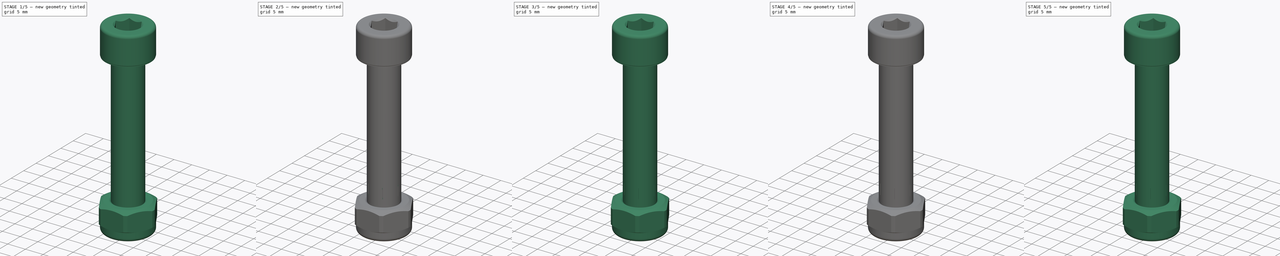
[diagram: build sequence overview — one tinted view per stage of 5, left to right]
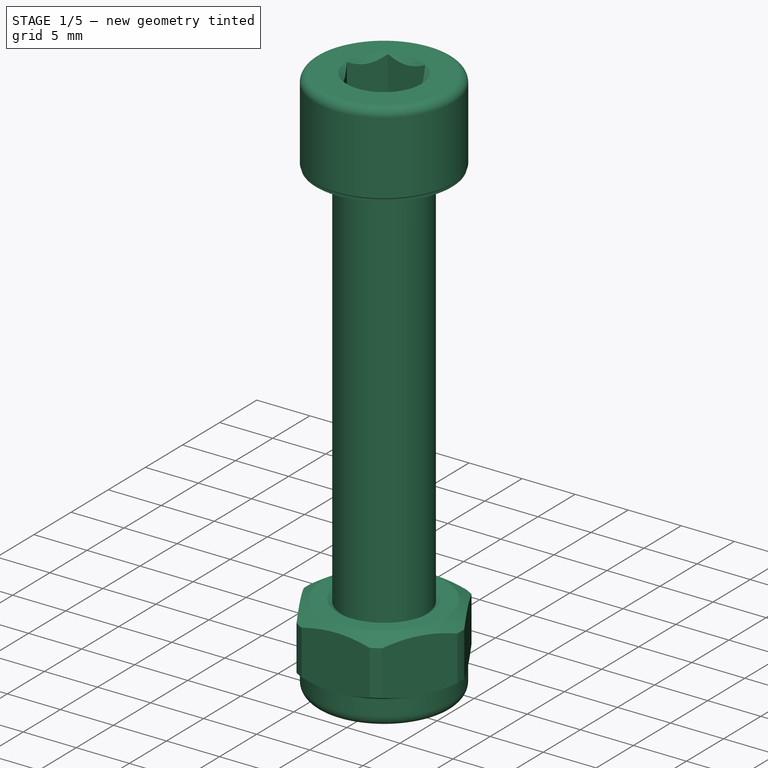
[diagram: stage 1 of 5 — iso view after this stage's code; geometry added in this stage tinted green]
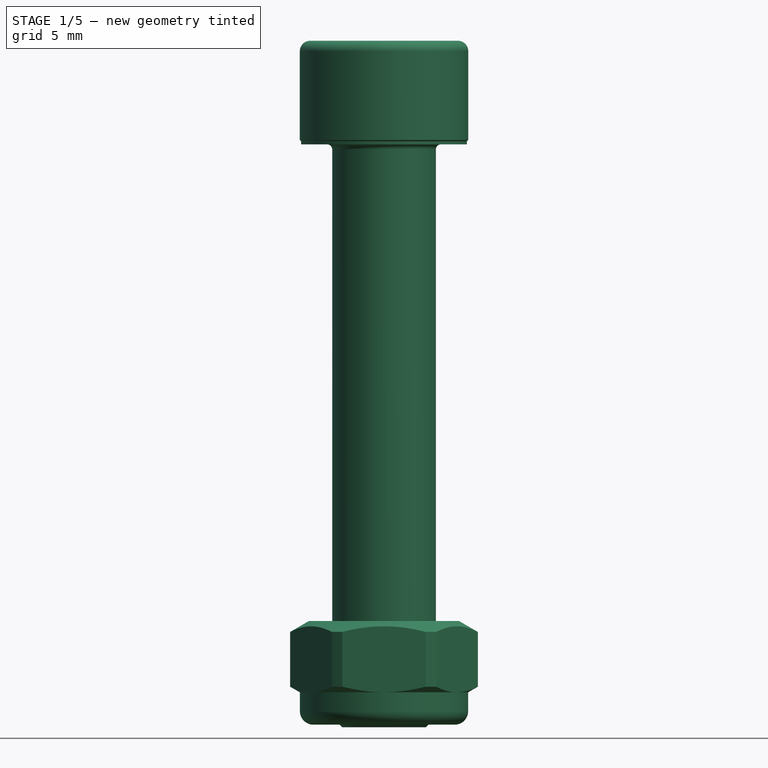
[diagram: stage 1 of 5 — front view after this stage's code; geometry added in this stage tinted green]
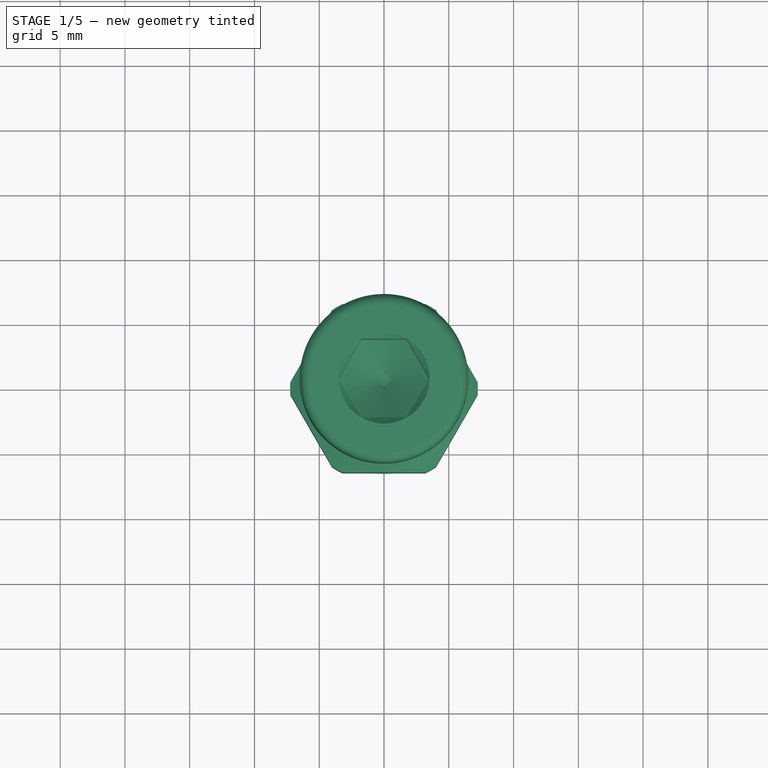
[diagram: stage 1 of 5 — top view after this stage's code; geometry added in this stage tinted green]
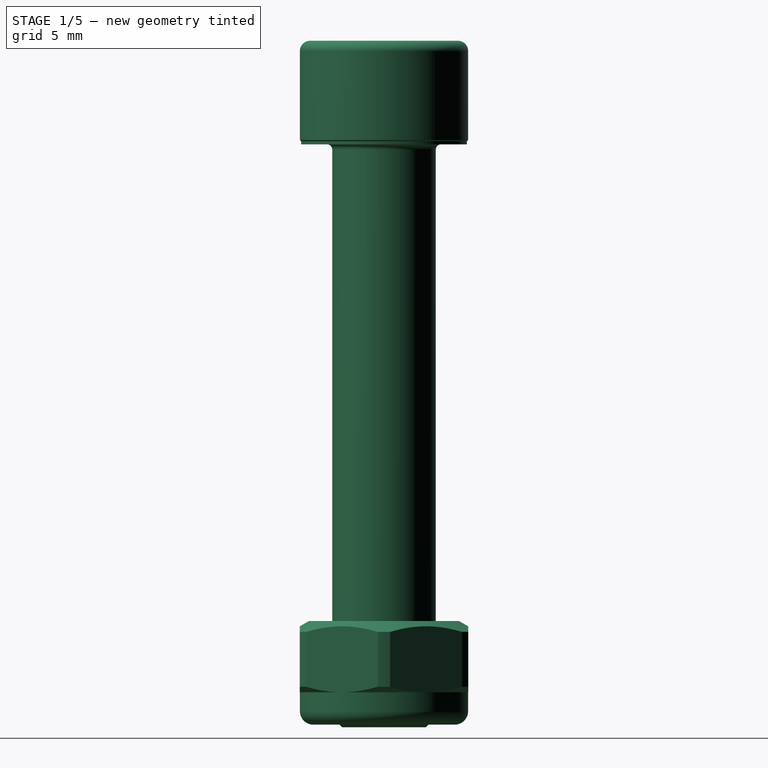
[diagram: stage 1 of 5 — right view after this stage's code; geometry added in this stage tinted green]
FCSTD DOCUMENT  (FreeCAD 0.18R16110 (Git))
Label: tribo_idler_ass_exploded
License: All rights reserved
LicenseURL: http://en.wikipedia.org/wiki/All_rights_reserved
objects: Part::Feature×15, Part::FeaturePython×14, App::Part×10, App::DocumentObjectGroup×2, Sketcher::SketchObject×2, PartDesign::Pad×2, PartDesign::Body×2
note: 37 computed .brp shape members not serialized (recipe doc carries the construction recipe); baked Part::Feature solids carry a one-line shape summary decoded from their .brp

FEATURE [App::Part] Part008  label="M4x35screwnut-004"
  Group = -> [Screw007,Nut004]
  Origin = -> Origin008
  Placement = pos=(74,6,26) rot=(0,0,1;0rad)
FEATURE [App::DocumentObjectGroup] Group001  label="M4x35screwnut"
  Group = -> [Part008,Part007,Part006,Part005]
FEATURE [Part::Feature] Body006  label="M8washer003"
  Placement = pos=(0,0,-35.2) rot=(0,0,1;0rad)
  shape: bbox 16 x 16 x 1.6 mm, 4 faces (baked)
FEATURE [Part::Feature] Body007  label="M8washer004"
  Placement = pos=(0,0,-36.8) rot=(0,0,1;0rad)
  shape: bbox 16 x 16 x 1.6 mm, 4 faces (baked)
FEATURE [Part::Feature] Compound002  label="zz688-02"
  Placement = pos=(0,0,-20.1) rot=(0,0,1;0rad)
  shape: bbox 17.32 x 17.32 x 5 mm, 102 faces, 11 solids (baked)
FEATURE [Part::Feature] Body005  label="M8washer002"
  Placement = pos=(0,0,-27.6) rot=(0,0,1;0rad)
  shape: bbox 16 x 16 x 1.6 mm, 4 faces (baked)
FEATURE [Sketcher::SketchObject] Sketch
  MapMode = 5
  Support = -> [XY_Plane011]
  sketch-geometry (2):
    g0: Circle CenterX=0 CenterY=0 CenterZ=0 NormalX=0 NormalY=0 NormalZ=1 AngleXU=0 Radius=6.4
    g1: Circle CenterX=0 CenterY=0 CenterZ=0 NormalX=0 NormalY=0 NormalZ=1 AngleXU=0 Radius=4.2
  constraints (4):
    c: Radius(g0) = 6.4
    c: Radius(g1) = 4.2
    c: Coincident(g1,g-1)
    c: Coincident(g0,g1)
FEATURE [Part::Feature] Body009  label="M8washer001"
  Placement = pos=(0,0,-9.2) rot=(0,0,1;0rad)
  shape: bbox 16 x 16 x 1.6 mm, 4 faces (baked)
FEATURE [Part::Feature] Body010  label="M8washer"
  Placement = pos=(0,0,-1.6) rot=(0,0,1;0rad)
  shape: bbox 16 x 16 x 1.6 mm, 4 faces (baked)
FEATURE [Part::Feature] Compound003  label="zz688-03"
  Placement = pos=(0,0,-25.1) rot=(0,0,1;0rad)
  shape: bbox 17.32 x 17.32 x 5 mm, 102 faces, 11 solids (baked)
FEATURE [Part::Feature] Compound001  label="zz688-01"
  Placement = pos=(0,0,-15.1) rot=(0,0,1;0rad)
  shape: bbox 17.32 x 17.32 x 5 mm, 102 faces, 11 solids (baked)
FEATURE [Part::FeaturePython] Nut  label="M8-Nut"  # Fasteners workbench fastener (typed FeaturePython)
  Placement = pos=(0,0,-36.8) rot=(0,1,0;3.14159rad)
  diameter = 6
  invert = false
  matchOuter = false
  offset = 0
  thread = false
  type = 2
FEATURE [PartDesign::Pad] Pad
  Length = 0.9
  Length2 = 100
  Profile = -> Sketch
  Type = 0
FEATURE [PartDesign::Body] Body  label="M8schnorrxS01"
  Group = -> [Sketch,Pad]
  Origin = -> Origin011
  Placement = pos=(0,0,-10.1) rot=(0,0,1;0rad)
  Tip = -> Pad
FEATURE [Part::FeaturePython] Screw008  label="M8x45-Screw"  # Fasteners workbench fastener (typed FeaturePython)
  diameter = 8
  invert = false
  length = 9
  matchOuter = false
  offset = 0
  thread = false
  type = 15
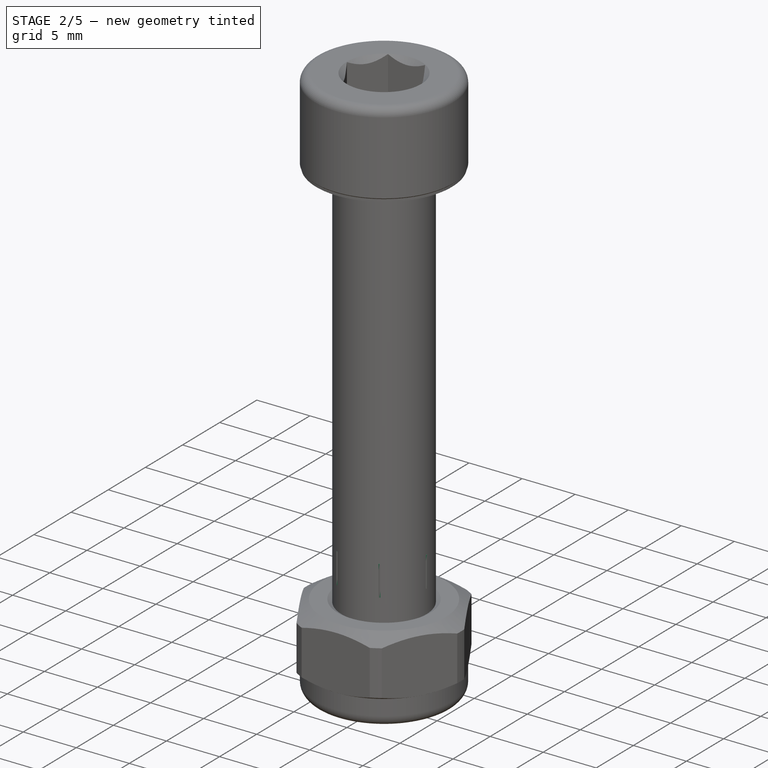
[diagram: stage 2 of 5 — iso view after this stage's code; geometry added in this stage tinted green]
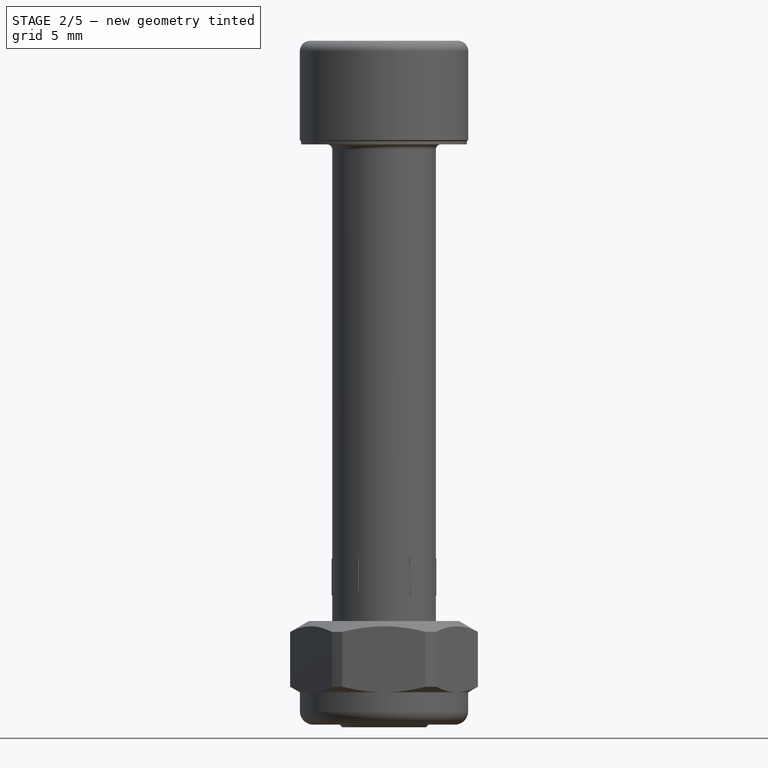
[diagram: stage 2 of 5 — front view after this stage's code; geometry added in this stage tinted green]
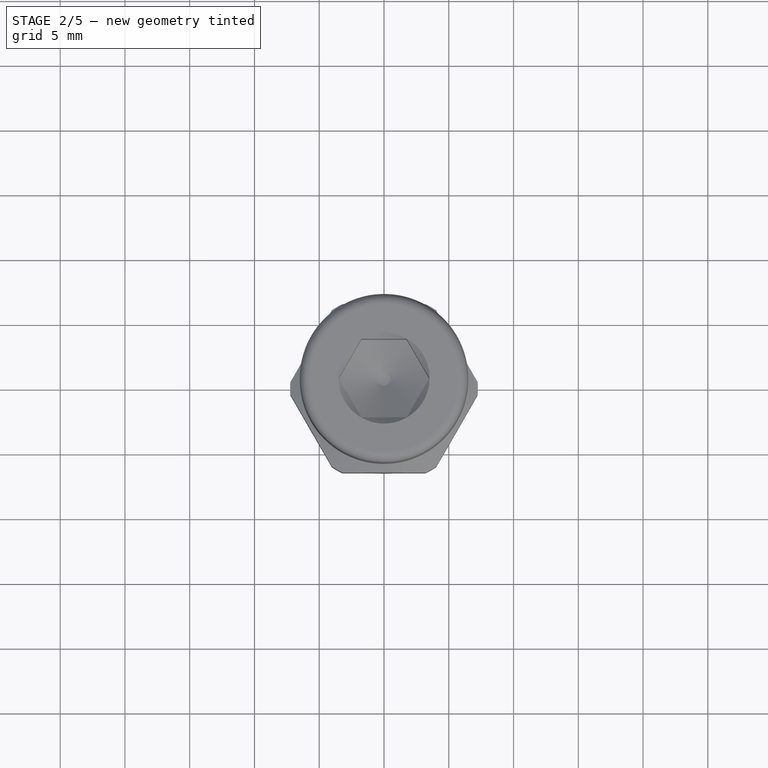
[diagram: stage 2 of 5 — top view after this stage's code; geometry added in this stage tinted green]
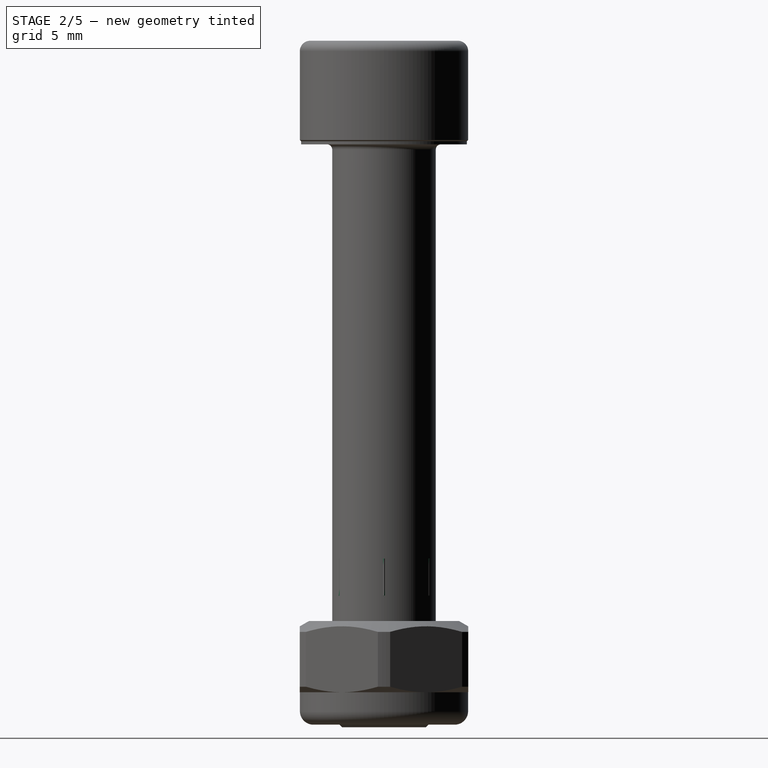
[diagram: stage 2 of 5 — right view after this stage's code; geometry added in this stage tinted green]
FEATURE [App::Part] Part007  label="M4x35screwnut-003"
  Group = -> [Screw006,Nut003]
  Origin = -> Origin007
  Placement = pos=(40,6,26) rot=(0,0,1;0rad)
FEATURE [Part::FeaturePython] Screw007  label="M4x35-Screw003"  # Fasteners workbench fastener (typed FeaturePython)
  diameter = 2
  invert = false
  length = 9
  matchOuter = false
  offset = 0
  thread = false
  type = 20
FEATURE [Part::FeaturePython] Nut004  label="M4-Nut003"  # Fasteners workbench fastener (typed FeaturePython)
  Placement = pos=(0,0,-35) rot=(0,0,1;0rad)
  diameter = 6
  invert = false
  matchOuter = false
  offset = 0
  thread = false
  type = 4
FEATURE [Sketcher::SketchObject] Sketch001
  MapMode = 5
  Support = -> [XY_Plane010]
  sketch-geometry (2):
    g0: Circle CenterX=0 CenterY=0 CenterZ=0 NormalX=0 NormalY=0 NormalZ=1 AngleXU=0 Radius=6.4
    g1: Circle CenterX=0 CenterY=0 CenterZ=0 NormalX=0 NormalY=0 NormalZ=1 AngleXU=0 Radius=4.2
  constraints (4):
    c: Radius(g0) = 6.4
    c: Radius(g1) = 4.2
    c: Coincident(g1,g-1)
    c: Coincident(g0,g1)
FEATURE [PartDesign::Pad] Pad001
  Length = 0.9
  Length2 = 100
  Profile = -> Sketch001
  Type = 0
FEATURE [PartDesign::Body] Body008  label="M8schnorrxS002"
  Group = -> [Sketch001,Pad001]
  Origin = -> Origin009
  Placement = pos=(0,0,-26) rot=(0,0,1;0rad)
  Tip = -> Pad001
FEATURE [App::Part] Part009  label="idler-m8-axis"
  Group = -> [Screw008,Body009,Body010,Compound001,Compound002,Compound003,Body005,Body006,Body007,Nut,Body,Body008]
  Origin = -> Origin010
  Placement = pos=(20,30,27.6) rot=(0,0,1;0rad)
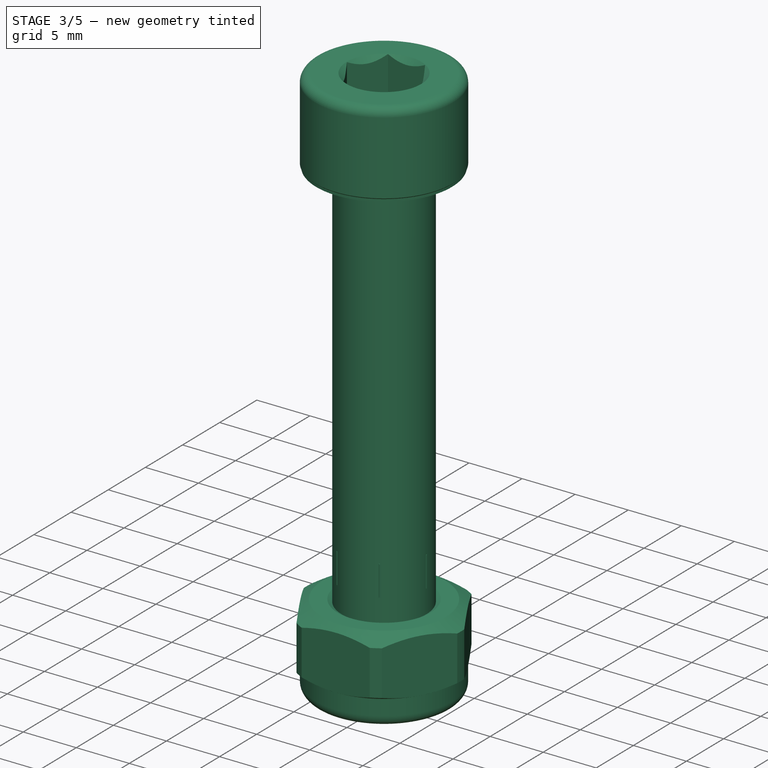
[diagram: stage 3 of 5 — iso view after this stage's code; geometry added in this stage tinted green]
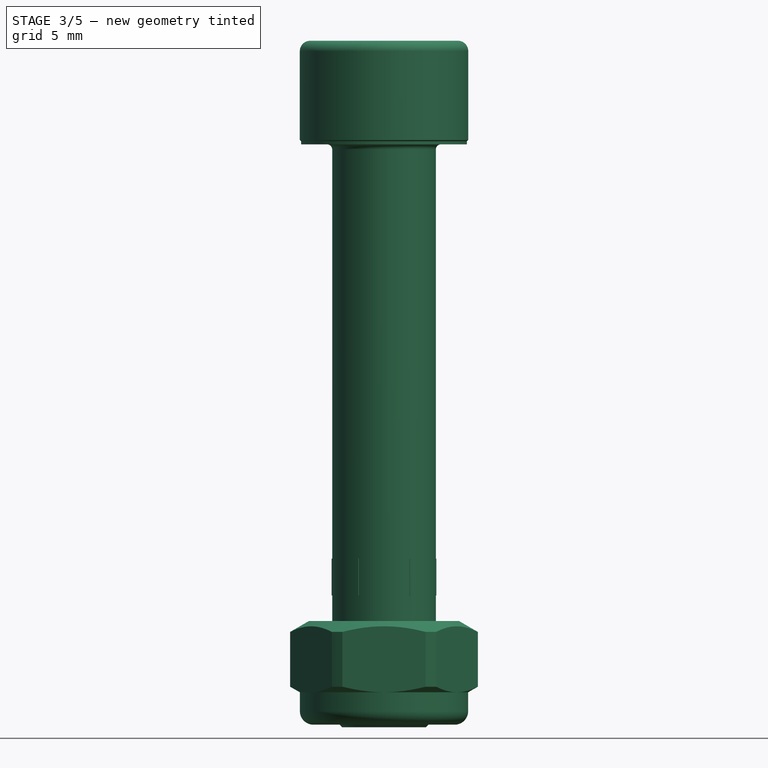
[diagram: stage 3 of 5 — front view after this stage's code; geometry added in this stage tinted green]
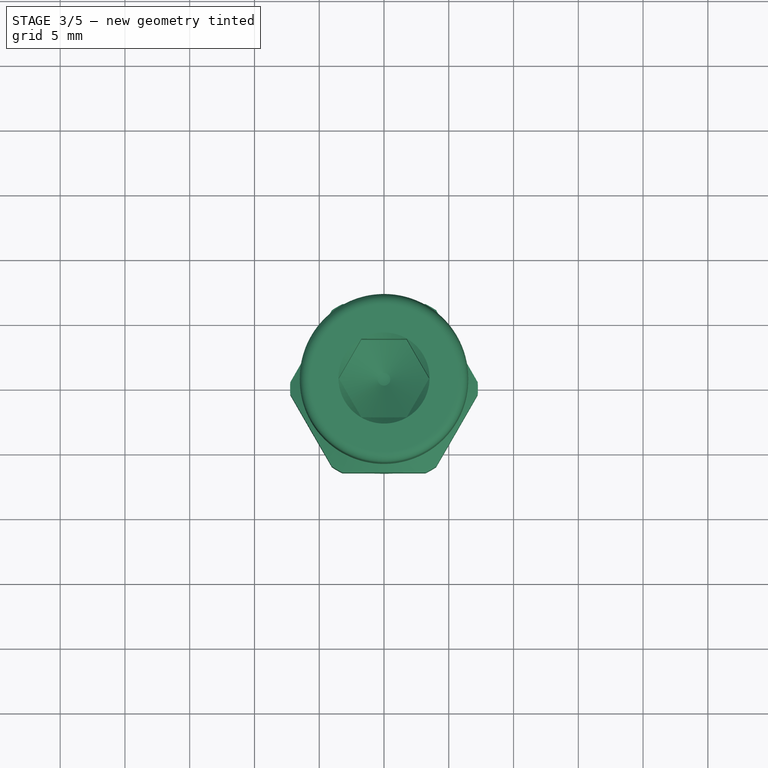
[diagram: stage 3 of 5 — top view after this stage's code; geometry added in this stage tinted green]
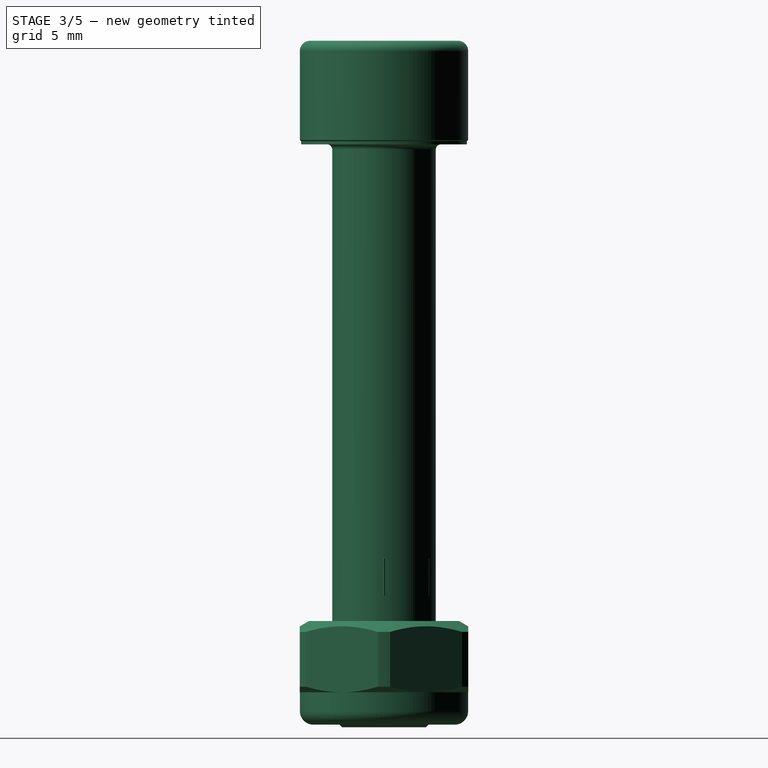
[diagram: stage 3 of 5 — right view after this stage's code; geometry added in this stage tinted green]
FEATURE [App::Part] Part005  label="M4x35screwnut-001"
  Group = -> [Screw004,Nut001]
  Origin = -> Origin005
  Placement = pos=(5,30,26) rot=(0,0,1;0rad)
FEATURE [Part::FeaturePython] Nut002  label="M4-Nut001"  # Fasteners workbench fastener (typed FeaturePython)
  Placement = pos=(0,0,-35) rot=(0,0,1;0rad)
  diameter = 6
  invert = false
  matchOuter = false
  offset = 0
  thread = false
  type = 4
FEATURE [Part::FeaturePython] Screw005  label="M4x35-Screw001"  # Fasteners workbench fastener (typed FeaturePython)
  diameter = 2
  invert = false
  length = 9
  matchOuter = false
  offset = 0
  thread = false
  type = 20
FEATURE [App::Part] Part006  label="M4x35screwnut-002"
  Group = -> [Screw005,Nut002]
  Origin = -> Origin006
  Placement = pos=(6,6,26) rot=(0,0,1;0rad)
FEATURE [Part::FeaturePython] Screw006  label="M4x35-Screw002"  # Fasteners workbench fastener (typed FeaturePython)
  diameter = 2
  invert = false
  length = 9
  matchOuter = false
  offset = 0
  thread = false
  type = 20
FEATURE [Part::FeaturePython] Nut003  label="M4-Nut002"  # Fasteners workbench fastener (typed FeaturePython)
  Placement = pos=(0,0,-35) rot=(0,0,1;0rad)
  diameter = 6
  invert = false
  matchOuter = false
  offset = 0
  thread = false
  type = 4
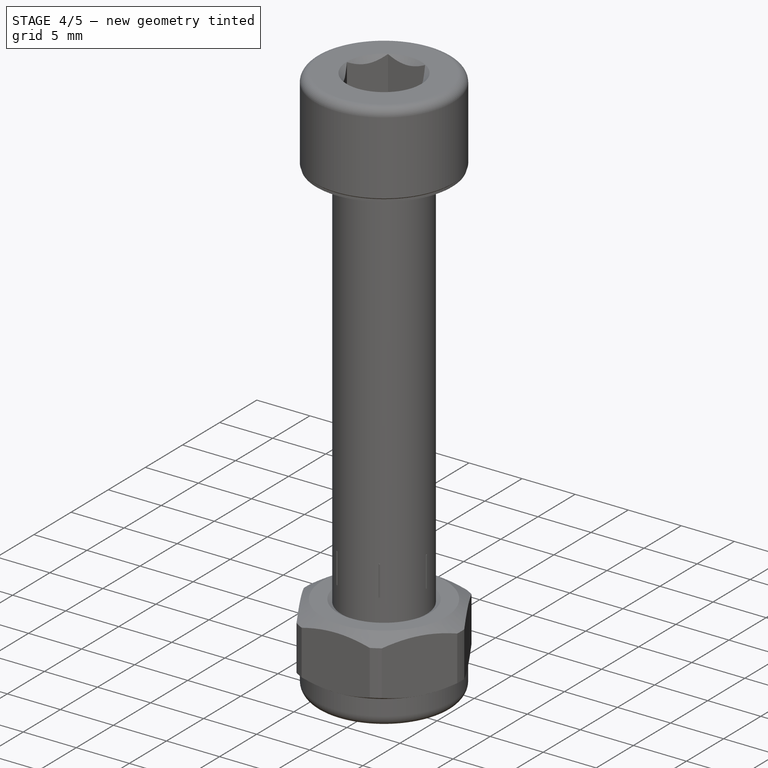
[diagram: stage 4 of 5 — iso view after this stage's code; geometry added in this stage tinted green]
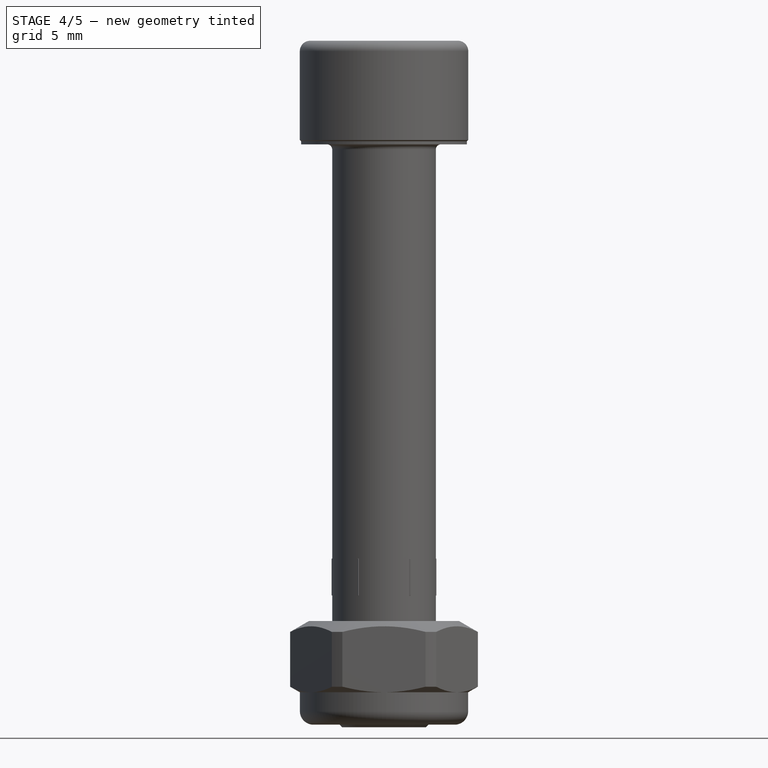
[diagram: stage 4 of 5 — front view after this stage's code; geometry added in this stage tinted green]
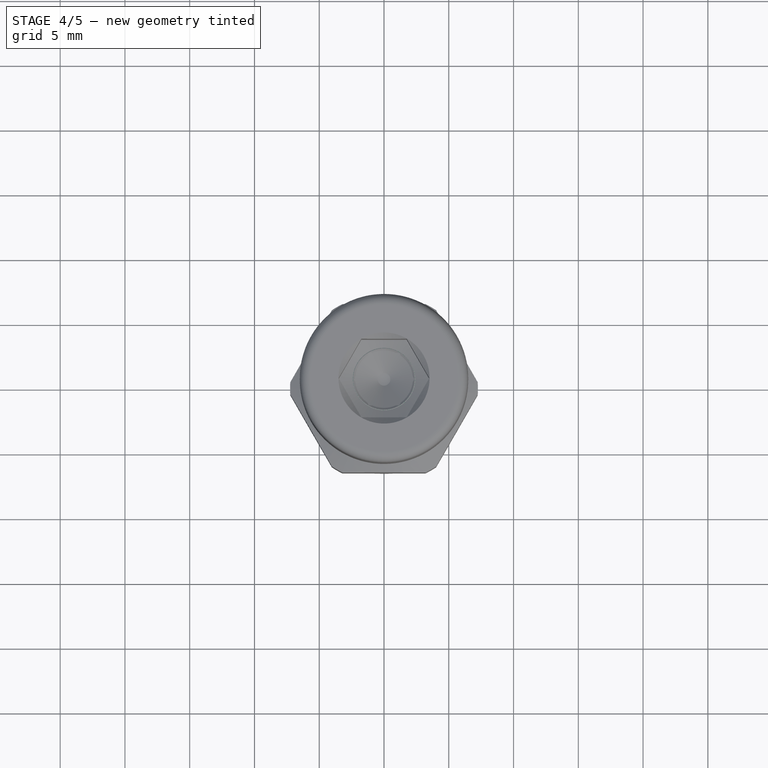
[diagram: stage 4 of 5 — top view after this stage's code; geometry added in this stage tinted green]
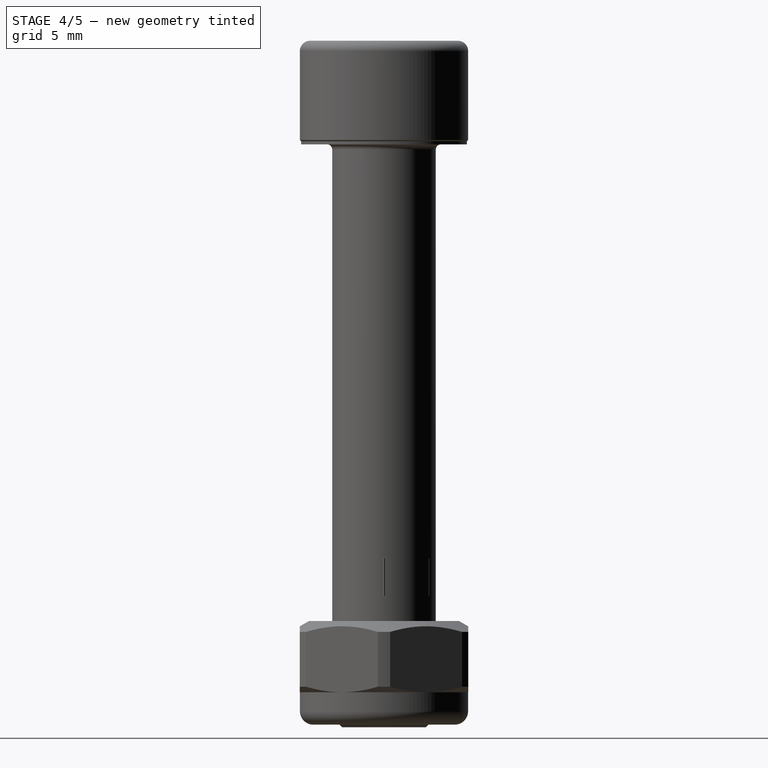
[diagram: stage 4 of 5 — right view after this stage's code; geometry added in this stage tinted green]
FEATURE [App::Part] Part003  label="M6x12screwnutplate-003"
  Group = -> [Body003,Screw002]
  Origin = -> Origin004
  Placement = pos=(70,30,-6) rot=(-0.707107,0.707107,0;3.14159rad)
FEATURE [Part::FeaturePython] Screw003  label="M6x12-Screw003"  # Fasteners workbench fastener (typed FeaturePython)
  diameter = 4
  invert = false
  length = 1
  matchOuter = false
  offset = 0
  thread = false
  type = 20
FEATURE [Part::Feature] Body004
  Placement = pos=(5,-5,-8) rot=(0,1,0;3.14159rad)
  shape: bbox 10 x 10 x 3 mm, 9 faces (baked)
FEATURE [App::Part] Part004  label="M6x12screwnutplate-004"
  Group = -> [Body004,Screw003]
  Origin = -> Origin003
  Placement = pos=(50,30,-6) rot=(-0.707107,0.707107,0;3.14159rad)
FEATURE [App::DocumentObjectGroup] Group  label="M6x12screwnutplate"
  Group = -> [Part003,Part004,Part002,Part001]
FEATURE [Part::FeaturePython] Screw004  label="M4x35-Screw"  # Fasteners workbench fastener (typed FeaturePython)
  diameter = 2
  invert = false
  length = 9
  matchOuter = false
  offset = 0
  thread = false
  type = 20
FEATURE [Part::FeaturePython] Nut001  label="M4-Nut"  # Fasteners workbench fastener (typed FeaturePython)
  Placement = pos=(0,0,-35) rot=(0,0,1;0rad)
  diameter = 6
  invert = false
  matchOuter = false
  offset = 0
  thread = false
  type = 4
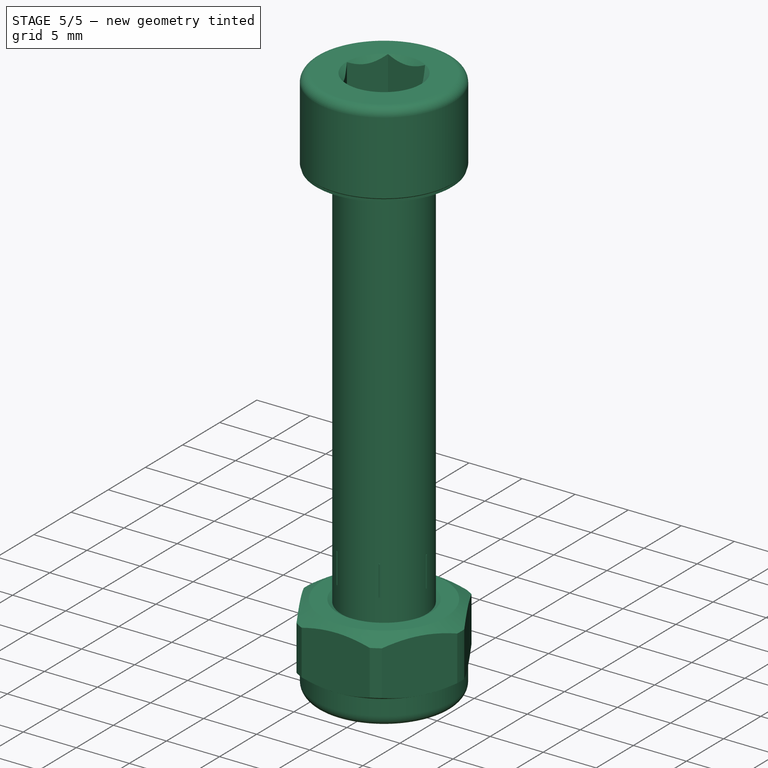
[diagram: stage 5 of 5 — iso view after this stage's code; geometry added in this stage tinted green]
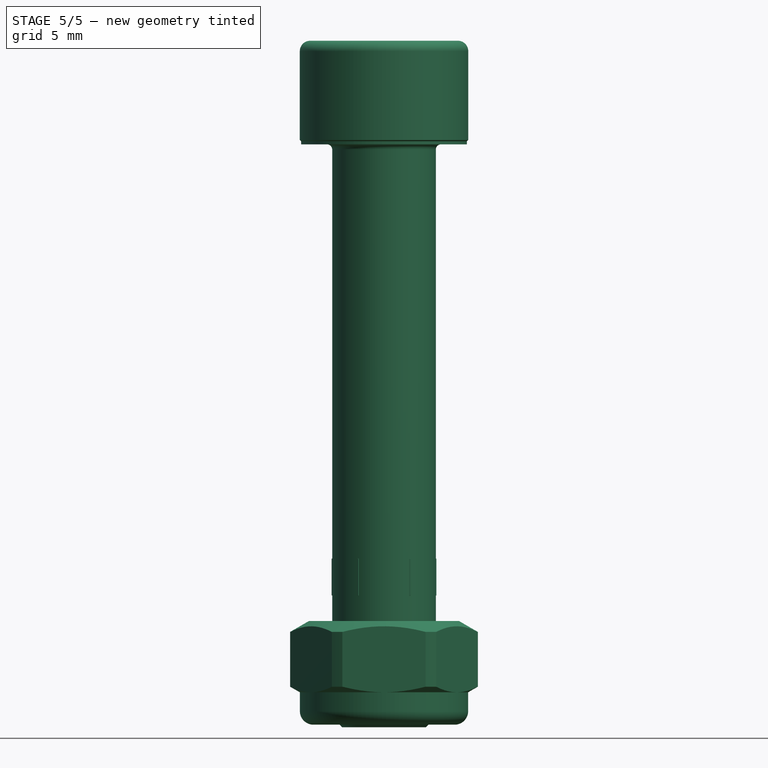
[diagram: stage 5 of 5 — front view after this stage's code; geometry added in this stage tinted green]
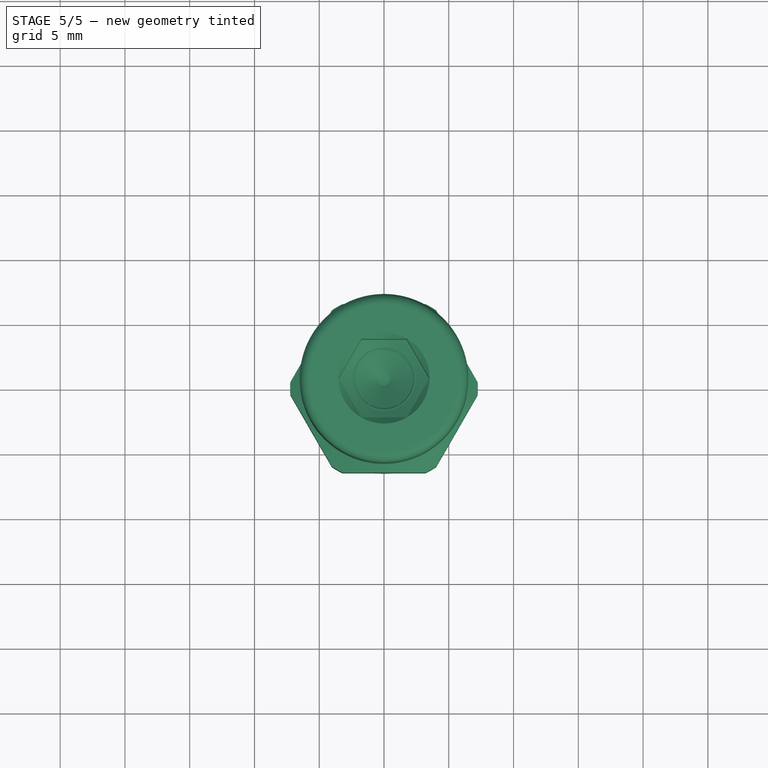
[diagram: stage 5 of 5 — top view after this stage's code; geometry added in this stage tinted green]
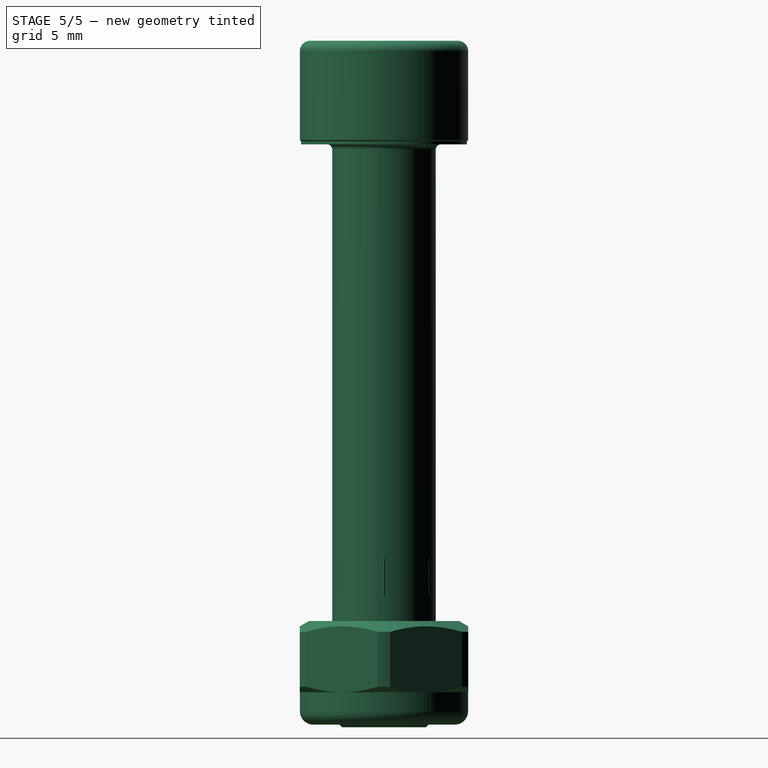
[diagram: stage 5 of 5 — right view after this stage's code; geometry added in this stage tinted green]
FEATURE [Part::Feature] Pocket001001  label="idler2"
  Placement = pos=(0,0,-6) rot=(0,0,1;0rad)
  shape: bbox 80 x 40 x 6 mm, 17 faces (baked)
FEATURE [Part::Feature] Pocket001002  label="idler2b"
  Placement = pos=(0,0,20) rot=(0,0,1;0rad)
  shape: bbox 80 x 40 x 6 mm, 17 faces (baked)
FEATURE [Part::Feature] Pocket003001  label="idler_connector2"
  shape: bbox 80 x 40 x 20 mm, 24 faces (baked)
FEATURE [App::Part] Part  label="idler-platten"
  Group = -> [Pocket003001,Pocket001002,Pocket001001]
  Origin = -> Origin
FEATURE [Part::FeaturePython] Screw  label="M6x12-Screw"  # Fasteners workbench fastener (typed FeaturePython)
  diameter = 4
  invert = false
  length = 1
  matchOuter = false
  offset = 0
  thread = false
  type = 20
FEATURE [Part::Feature] Body001
  Placement = pos=(5,-5,-8) rot=(0,1,0;3.14159rad)
  shape: bbox 10 x 10 x 3 mm, 9 faces (baked)
FEATURE [App::Part] Part001  label="M6x12screwnutplate-001"
  Group = -> [Body001,Screw]
  Origin = -> Origin001
  Placement = pos=(50,30,26) rot=(0,0,1;1.5708rad)
FEATURE [Part::FeaturePython] Screw001  label="M6x12-Screw001"  # Fasteners workbench fastener (typed FeaturePython)
  diameter = 4
  invert = false
  length = 1
  matchOuter = false
  offset = 0
  thread = false
  type = 20
FEATURE [Part::Feature] Body002
  Placement = pos=(5,-5,-8) rot=(0,1,0;3.14159rad)
  shape: bbox 10 x 10 x 3 mm, 9 faces (baked)
FEATURE [App::Part] Part002  label="M6x12screwnutplate-002"
  Group = -> [Body002,Screw001]
  Origin = -> Origin002
  Placement = pos=(70,30,26) rot=(0,0,1;1.5708rad)
FEATURE [Part::Feature] Body003
  Placement = pos=(5,-5,-8) rot=(0,1,0;3.14159rad)
  shape: bbox 10 x 10 x 3 mm, 9 faces (baked)
FEATURE [Part::FeaturePython] Screw002  label="M6x12-Screw002"  # Fasteners workbench fastener (typed FeaturePython)
  diameter = 4
  invert = false
  length = 1
  matchOuter = false
  offset = 0
  thread = false
  type = 20
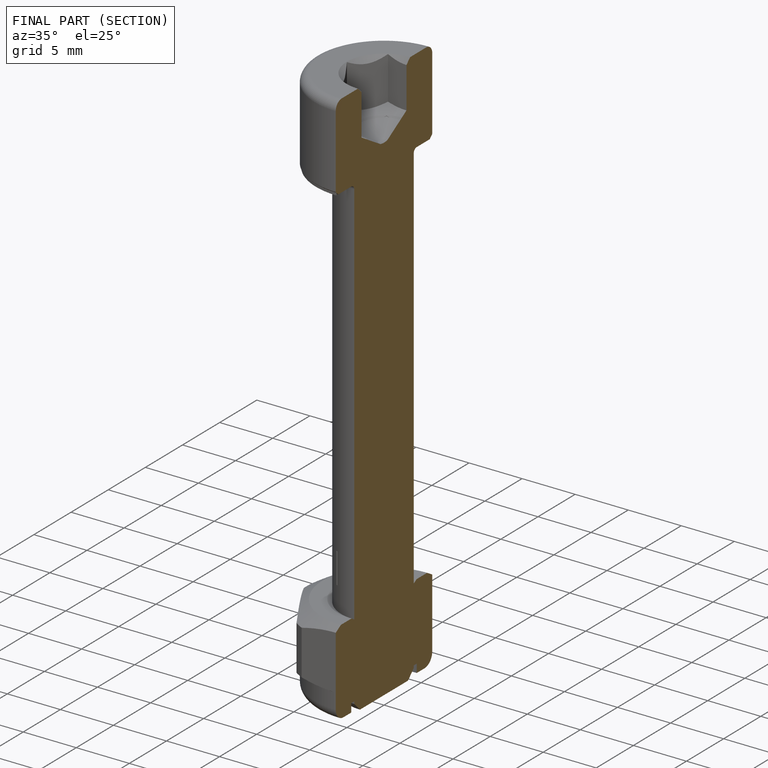
[diagram: finished part — half-section view (interior)]
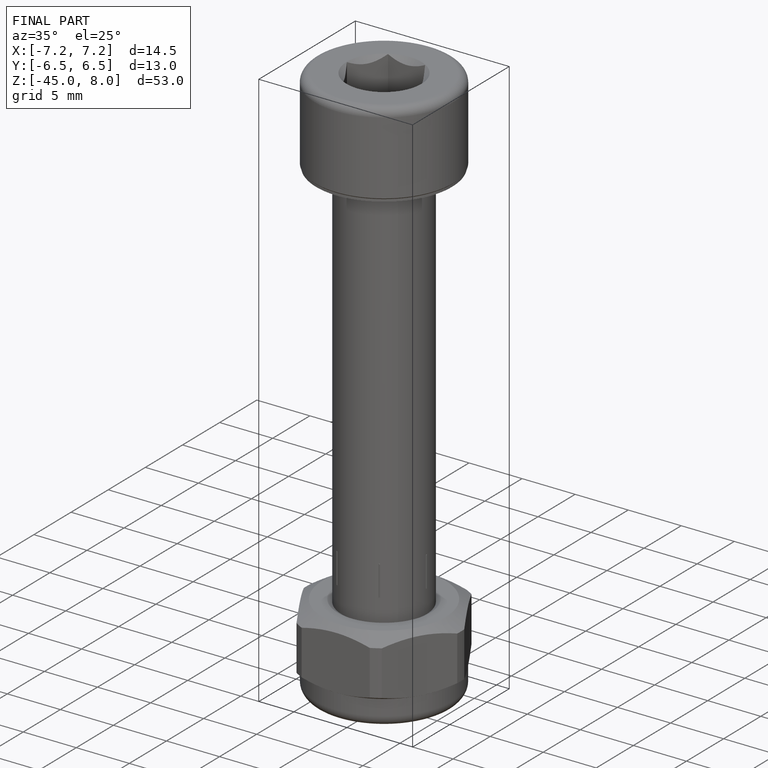
[diagram: finished part — iso view with bounding-box wireframe]
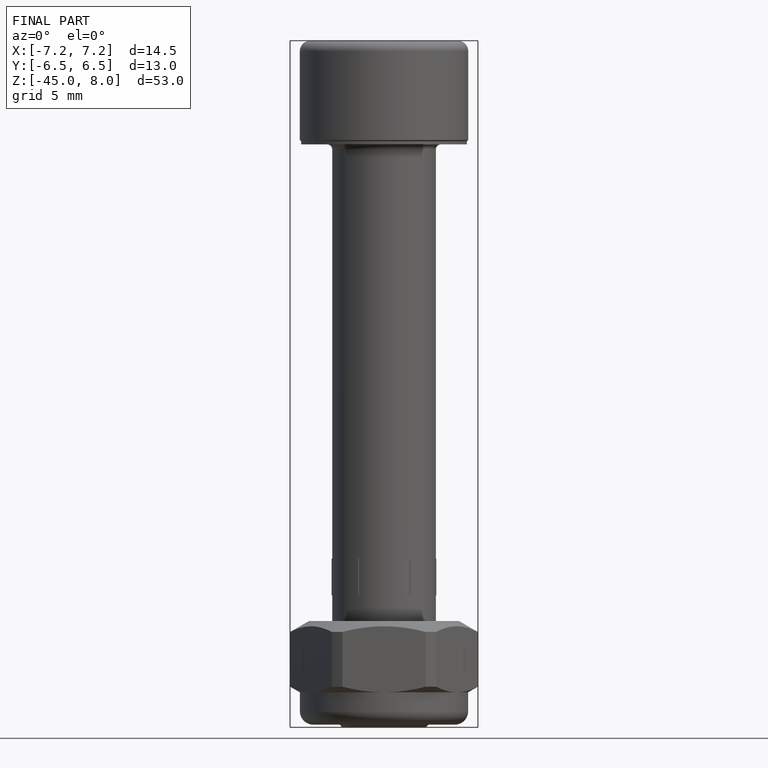
[diagram: finished part — front view with bounding-box wireframe]
